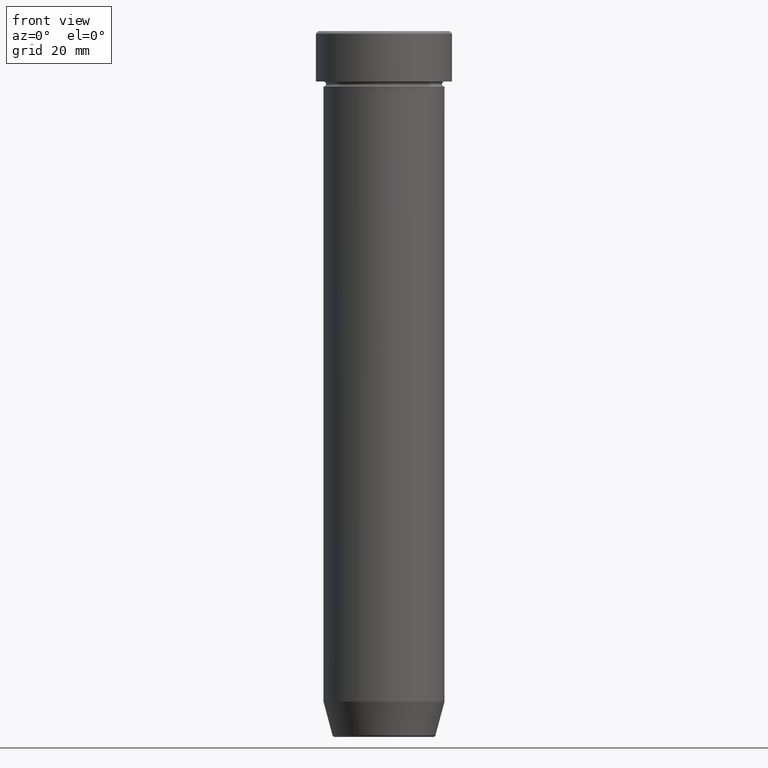
[diagram: clean part render]
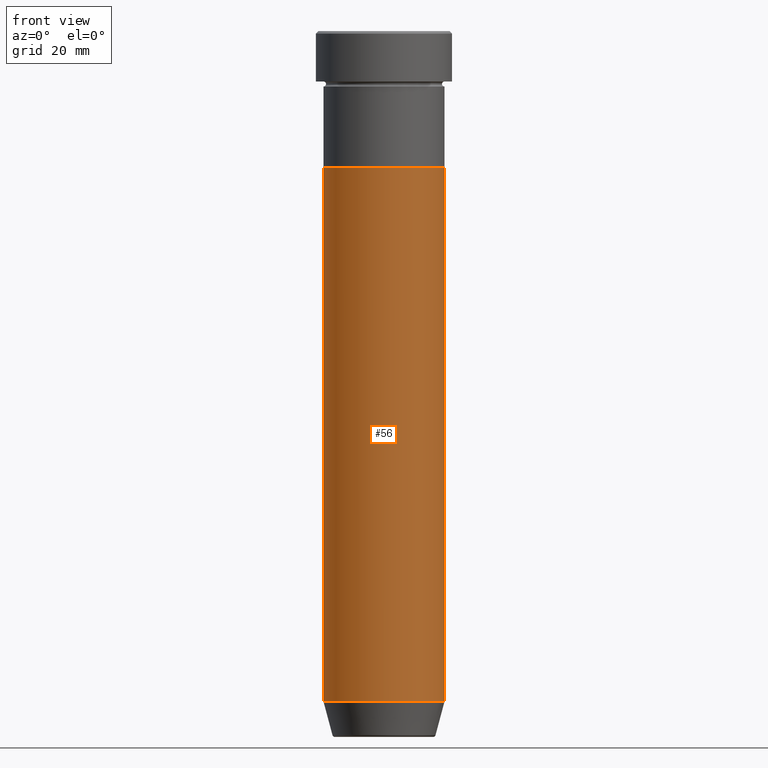
[diagram: same view with one face highlighted and labeled with its STEP entity id]
A machine part, front view. The second image highlights one B-rep face of the part: STEP entity #56.
In plain terms, the highlighted cylindrical surface (partial cylindrical patch) has radius 12 mm, axis along (-0, -0, 1).
Its self-contained STEP definition (entity closure, byte-faithful):
#32 = DIRECTION ( 'NONE',  ( -0.000000000000000000, -0.000000000000000000, 1.000000000000000000 ) ) ;
#44 = CARTESIAN_POINT ( 'NONE',  ( -12.00000000000000000, 1.469576158976823947E-15, 0.000000000000000000 ) ) ;
#53 = DIRECTION ( 'NONE',  ( -0.000000000000000000, -0.000000000000000000, 1.000000000000000000 ) ) ;
#56 = ADVANCED_FACE ( 'NONE', ( #92 ), #83, .T. ) ;
#60 = CARTESIAN_POINT ( 'NONE',  ( 12.00000000000000000, 0.000000000000000000, 0.000000000000000000 ) ) ;
#71 = ORIENTED_EDGE ( 'NONE', *, *, #428, .F. ) ;
#83 = CYLINDRICAL_SURFACE ( 'NONE', #584, 12.00000000000000000 ) ;
#91 = CARTESIAN_POINT ( 'NONE',  ( 0.000000000000000000, 0.000000000000000000, -27.00000000000000000 ) ) ;
#92 = FACE_OUTER_BOUND ( 'NONE', #376, .T. ) ;
#108 = CARTESIAN_POINT ( 'NONE',  ( 12.00000000000000000, 0.000000000000000000, -133.0000000000000000 ) ) ;
#114 = CARTESIAN_POINT ( 'NONE',  ( 12.00000000000000000, 0.000000000000000000, -27.00000000000000000 ) ) ;
#151 = VERTEX_POINT ( 'NONE', #108 ) ;
#157 = DIRECTION ( 'NONE',  ( -0.000000000000000000, -0.000000000000000000, 1.000000000000000000 ) ) ;
#182 = AXIS2_PLACEMENT_3D ( 'NONE', #466, #53, #239 ) ;
#191 = ORIENTED_EDGE ( 'NONE', *, *, #192, .F. ) ;
#192 = EDGE_CURVE ( 'NONE', #413, #275, #453, .T. ) ;
#218 = EDGE_CURVE ( 'NONE', #413, #151, #246, .T. ) ;
#221 = CIRCLE ( 'NONE', #403, 12.00000000000000000 ) ;
#239 = DIRECTION ( 'NONE',  ( 1.000000000000000000, 0.000000000000000000, 0.000000000000000000 ) ) ;
#246 = CIRCLE ( 'NONE', #182, 12.00000000000000000 ) ;
#265 = DIRECTION ( 'NONE',  ( 1.000000000000000000, 0.000000000000000000, 0.000000000000000000 ) ) ;
#270 = DIRECTION ( 'NONE',  ( 1.000000000000000000, 0.000000000000000000, 0.000000000000000000 ) ) ;
#271 = CARTESIAN_POINT ( 'NONE',  ( 0.000000000000000000, 0.000000000000000000, 0.000000000000000000 ) ) ;
#275 = VERTEX_POINT ( 'NONE', #494 ) ;
#318 = VECTOR ( 'NONE', #577, 1000.000000000000000 ) ;
#331 = LINE ( 'NONE', #60, #318 ) ;
#335 = DIRECTION ( 'NONE',  ( -0.000000000000000000, -0.000000000000000000, 1.000000000000000000 ) ) ;
#343 = ORIENTED_EDGE ( 'NONE', *, *, #218, .T. ) ;
#344 = ORIENTED_EDGE ( 'NONE', *, *, #519, .T. ) ;
#376 = EDGE_LOOP ( 'NONE', ( #191, #343, #344, #71 ) ) ;
#403 = AXIS2_PLACEMENT_3D ( 'NONE', #91, #335, #270 ) ;
#413 = VERTEX_POINT ( 'NONE', #552 ) ;
#428 = EDGE_CURVE ( 'NONE', #275, #509, #221, .T. ) ;
#453 = LINE ( 'NONE', #44, #587 ) ;
#466 = CARTESIAN_POINT ( 'NONE',  ( 0.000000000000000000, 0.000000000000000000, -133.0000000000000000 ) ) ;
#494 = CARTESIAN_POINT ( 'NONE',  ( -12.00000000000000000, 1.469576158976823947E-15, -27.00000000000000000 ) ) ;
#509 = VERTEX_POINT ( 'NONE', #114 ) ;
#519 = EDGE_CURVE ( 'NONE', #151, #509, #331, .T. ) ;
#552 = CARTESIAN_POINT ( 'NONE',  ( -12.00000000000000000, 1.469576158976823947E-15, -133.0000000000000000 ) ) ;
#577 = DIRECTION ( 'NONE',  ( -0.000000000000000000, -0.000000000000000000, 1.000000000000000000 ) ) ;
#584 = AXIS2_PLACEMENT_3D ( 'NONE', #271, #32, #265 ) ;
#587 = VECTOR ( 'NONE', #157, 1000.000000000000000 ) ;